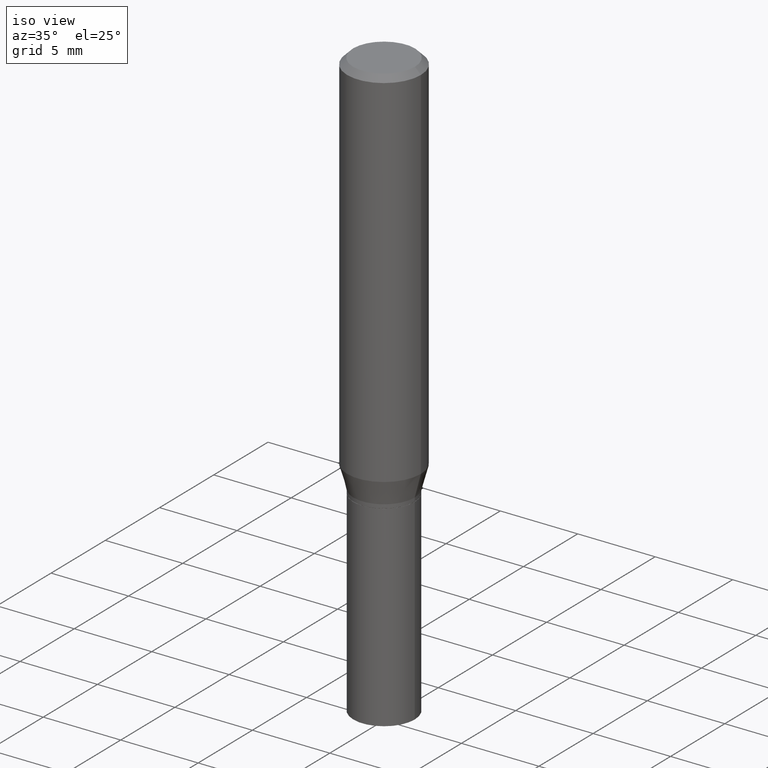
[diagram: clean part render]
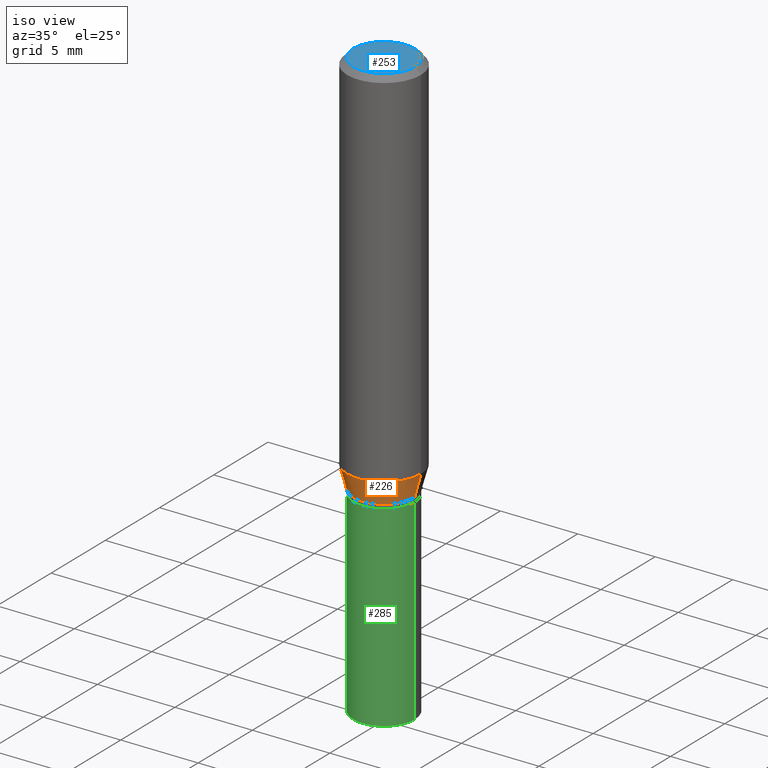
[diagram: same view with three faces highlighted in distinct colors, each labeled with its STEP entity id]
A machine part, iso view with three faces highlighted in distinct colors.
Their STEP definitions:

[orange] entity #226 — the highlighted conical surface has half-angle 15 deg.
#10 = EDGE_CURVE ( 'NONE', #308, #464, #155, .T. ) ;
#22 = VECTOR ( 'NONE', #347, 39.37007874015748143 ) ;
#43 = CIRCLE ( 'NONE', #256, 0.07810000000000004439 ) ;
#51 = FACE_OUTER_BOUND ( 'NONE', #87, .T. ) ;
#57 = CARTESIAN_POINT ( 'NONE',  ( 2.278182611636715174E-29, -3.252640988463440710E-15, -0.9315934048615475138 ) ) ;
#78 = CARTESIAN_POINT ( 'NONE',  ( 2.421014118123285332E-29, -3.456566525454714328E-15, -0.9900000000000001021 ) ) ;
#87 = EDGE_LOOP ( 'NONE', ( #255, #460, #358, #465 ) ) ;
#105 = EDGE_CURVE ( 'NONE', #231, #308, #43, .T. ) ;
#110 = DIRECTION ( 'NONE',  ( 1.000000000000000000, -6.982962677686266711E-15, 0.000000000000000000 ) ) ;
#124 = CARTESIAN_POINT ( 'NONE',  ( 2.421014118123285332E-29, -3.456566525454714328E-15, -0.9900000000000001021 ) ) ;
#126 = LINE ( 'NONE', #279, #22 ) ;
#154 = VERTEX_POINT ( 'NONE', #316 ) ;
#155 = LINE ( 'NONE', #194, #466 ) ;
#189 = EDGE_CURVE ( 'NONE', #231, #154, #126, .T. ) ;
#194 = CARTESIAN_POINT ( 'NONE',  ( 0.07810000000000004439, -4.001935910582012553E-15, -0.9900000000000001021 ) ) ;
#201 = AXIS2_PLACEMENT_3D ( 'NONE', #57, #216, #110 ) ;
#207 = CARTESIAN_POINT ( 'NONE',  ( -0.07810000000000004439, -2.744069911257211227E-15, -0.9900000000000001021 ) ) ;
#215 = DIRECTION ( 'NONE',  ( -2.445468806185136597E-29, 3.491481338843145583E-15, 1.000000000000000000 ) ) ;
#216 = DIRECTION ( 'NONE',  ( -2.445468806185136597E-29, 3.491481338843145583E-15, 1.000000000000000000 ) ) ;
#224 = CARTESIAN_POINT ( 'NONE',  ( 0.09375000000000001388, -3.907293739496527425E-15, -0.9315934048615475138 ) ) ;
#226 = ADVANCED_FACE ( 'NONE', ( #51 ), #367, .T. ) ;
#231 = VERTEX_POINT ( 'NONE', #207 ) ;
#255 = ORIENTED_EDGE ( 'NONE', *, *, #189, .F. ) ;
#256 = AXIS2_PLACEMENT_3D ( 'NONE', #78, #215, #318 ) ;
#273 = CIRCLE ( 'NONE', #201, 0.09375000000000001388 ) ;
#279 = CARTESIAN_POINT ( 'NONE',  ( -0.07810000000000004439, -2.901632648826075669E-15, -0.9900000000000001021 ) ) ;
#308 = VERTEX_POINT ( 'NONE', #459 ) ;
#309 = DIRECTION ( 'NONE',  ( -2.445468806185136597E-29, 3.491481338843145583E-15, 1.000000000000000000 ) ) ;
#316 = CARTESIAN_POINT ( 'NONE',  ( -0.09375000000000001388, -2.586507173688346391E-15, -0.9315934048615475138 ) ) ;
#318 = DIRECTION ( 'NONE',  ( 1.000000000000000000, -6.982962677686269077E-15, 0.000000000000000000 ) ) ;
#338 = DIRECTION ( 'NONE',  ( 0.2588190451025214611, 1.565188264969620982E-15, 0.9659258262890679791 ) ) ;
#347 = DIRECTION ( 'NONE',  ( -0.2588190451025214611, 5.211531920934550253E-15, 0.9659258262890679791 ) ) ;
#352 = DIRECTION ( 'NONE',  ( 1.000000000000000000, -6.982962677686269077E-15, 0.000000000000000000 ) ) ;
#358 = ORIENTED_EDGE ( 'NONE', *, *, #10, .T. ) ;
#366 = EDGE_CURVE ( 'NONE', #154, #464, #273, .T. ) ;
#367 = CONICAL_SURFACE ( 'NONE', #446, 0.07810000000000004439, 0.2617993877991501850 ) ;
#446 = AXIS2_PLACEMENT_3D ( 'NONE', #124, #309, #352 ) ;
#459 = CARTESIAN_POINT ( 'NONE',  ( 0.07810000000000004439, -4.001935910582012553E-15, -0.9900000000000001021 ) ) ;
#460 = ORIENTED_EDGE ( 'NONE', *, *, #105, .T. ) ;
#464 = VERTEX_POINT ( 'NONE', #224 ) ;
#465 = ORIENTED_EDGE ( 'NONE', *, *, #366, .F. ) ;
#466 = VECTOR ( 'NONE', #338, 39.37007874015748143 ) ;

[blue] entity #253 — the highlighted planar face has unit normal (0, -0, -1).
#2 = DIRECTION ( 'NONE',  ( 1.000000000000000000, -6.982962677686267499E-15, 4.876807983162778740E-29 ) ) ;
#4 = ORIENTED_EDGE ( 'NONE', *, *, #166, .T. ) ;
#33 = CIRCLE ( 'NONE', #128, 0.07875000000000001443 ) ;
#42 = DIRECTION ( 'NONE',  ( 1.000000000000000000, -6.982962677686267499E-15, 4.876807983162778740E-29 ) ) ;
#44 = EDGE_CURVE ( 'NONE', #433, #239, #33, .T. ) ;
#45 = ORIENTED_EDGE ( 'NONE', *, *, #44, .T. ) ;
#47 = CARTESIAN_POINT ( 'NONE',  ( -0.07875000000000001443, 5.760944209091169839E-16, 1.724453912998643423E-17 ) ) ;
#67 = AXIS2_PLACEMENT_3D ( 'NONE', #131, #441, #423 ) ;
#92 = DIRECTION ( 'NONE',  ( -2.445468806185136597E-29, 3.491481338843145583E-15, 1.000000000000000000 ) ) ;
#101 = CARTESIAN_POINT ( 'NONE',  ( 0.07875000000000001443, -6.179040623491182236E-16, 1.724453912999445534E-17 ) ) ;
#113 = EDGE_LOOP ( 'NONE', ( #4, #45 ) ) ;
#128 = AXIS2_PLACEMENT_3D ( 'NONE', #405, #336, #2 ) ;
#131 = CARTESIAN_POINT ( 'NONE',  ( 5.499083108677934443E-16, 0.07875000000000001443, -2.663318858689025652E-16 ) ) ;
#166 = EDGE_CURVE ( 'NONE', #239, #433, #295, .T. ) ;
#173 = FACE_OUTER_BOUND ( 'NONE', #113, .T. ) ;
#239 = VERTEX_POINT ( 'NONE', #47 ) ;
#243 = CARTESIAN_POINT ( 'NONE',  ( -4.217098251943042903E-46, 6.020898656931179793E-32, 1.724453912999037237E-17 ) ) ;
#253 = ADVANCED_FACE ( 'NONE', ( #173 ), #447, .F. ) ;
#295 = CIRCLE ( 'NONE', #302, 0.07875000000000001443 ) ;
#302 = AXIS2_PLACEMENT_3D ( 'NONE', #243, #92, #42 ) ;
#336 = DIRECTION ( 'NONE',  ( -2.445468806185136597E-29, 3.491481338843145583E-15, 1.000000000000000000 ) ) ;
#405 = CARTESIAN_POINT ( 'NONE',  ( -4.217098251943042903E-46, 6.020898656931179793E-32, 1.724453912999037237E-17 ) ) ;
#423 = DIRECTION ( 'NONE',  ( -1.000000000000000000, 6.982962677686265922E-15, -4.876176775795935793E-29 ) ) ;
#433 = VERTEX_POINT ( 'NONE', #101 ) ;
#441 = DIRECTION ( 'NONE',  ( 2.438088387897960049E-29, -3.491481338843145188E-15, -1.000000000000000000 ) ) ;
#447 = PLANE ( 'NONE',  #67 ) ;

[green] entity #285 — the highlighted cylindrical surface (partial cylindrical patch) has radius 1.9837 mm, axis along (-0, 0, 1).
#1 = DIRECTION ( 'NONE',  ( 1.000000000000000000, -6.982962677686266711E-15, 0.000000000000000000 ) ) ;
#6 = ORIENTED_EDGE ( 'NONE', *, *, #17, .F. ) ;
#9 = CARTESIAN_POINT ( 'NONE',  ( 3.668203209277704895E-29, -5.237222008264718177E-15, -1.500000000000000222 ) ) ;
#17 = EDGE_CURVE ( 'NONE', #217, #190, #434, .T. ) ;
#20 = EDGE_CURVE ( 'NONE', #136, #407, #265, .T. ) ;
#38 = ORIENTED_EDGE ( 'NONE', *, *, #20, .T. ) ;
#64 = CYLINDRICAL_SURFACE ( 'NONE', #210, 0.07810000000000000275 ) ;
#77 = EDGE_LOOP ( 'NONE', ( #161, #38, #387, #6 ) ) ;
#107 = LINE ( 'NONE', #329, #114 ) ;
#114 = VECTOR ( 'NONE', #328, 39.37007874015748143 ) ;
#136 = VERTEX_POINT ( 'NONE', #391 ) ;
#151 = EDGE_CURVE ( 'NONE', #136, #217, #206, .T. ) ;
#161 = ORIENTED_EDGE ( 'NONE', *, *, #151, .F. ) ;
#183 = DIRECTION ( 'NONE',  ( 1.000000000000000000, -6.982962677686266711E-15, 4.876176775795935232E-29 ) ) ;
#190 = VERTEX_POINT ( 'NONE', #414 ) ;
#203 = CARTESIAN_POINT ( 'NONE',  ( 2.445468806185136877E-29, -3.491481338843145977E-15, -1.000000000000000222 ) ) ;
#206 = LINE ( 'NONE', #286, #323 ) ;
#210 = AXIS2_PLACEMENT_3D ( 'NONE', #292, #259, #183 ) ;
#217 = VERTEX_POINT ( 'NONE', #384 ) ;
#259 = DIRECTION ( 'NONE',  ( -2.445468806185136597E-29, 3.491481338843145583E-15, 1.000000000000000000 ) ) ;
#265 = CIRCLE ( 'NONE', #268, 0.07810000000000000275 ) ;
#268 = AXIS2_PLACEMENT_3D ( 'NONE', #9, #438, #342 ) ;
#285 = ADVANCED_FACE ( 'NONE', ( #297 ), #64, .T. ) ;
#286 = CARTESIAN_POINT ( 'NONE',  ( -0.07810000000000000275, 5.549338766286382647E-16, -3.841688305489081275E-30 ) ) ;
#292 = CARTESIAN_POINT ( 'NONE',  ( 0.000000000000000000, 0.000000000000000000, 0.000000000000000000 ) ) ;
#297 = FACE_OUTER_BOUND ( 'NONE', #77, .T. ) ;
#323 = VECTOR ( 'NONE', #444, 39.37007874015748143 ) ;
#328 = DIRECTION ( 'NONE',  ( -2.445468806185136877E-29, 3.491481338843145188E-15, 1.000000000000000000 ) ) ;
#329 = CARTESIAN_POINT ( 'NONE',  ( 0.07810000000000000275, -5.453693851272974364E-16, 3.808294061896625703E-30 ) ) ;
#337 = EDGE_CURVE ( 'NONE', #407, #190, #107, .T. ) ;
#342 = DIRECTION ( 'NONE',  ( 1.000000000000000000, -6.982962677686266711E-15, 0.000000000000000000 ) ) ;
#345 = DIRECTION ( 'NONE',  ( -2.445468806185136597E-29, 3.491481338843145583E-15, 1.000000000000000000 ) ) ;
#384 = CARTESIAN_POINT ( 'NONE',  ( -0.07810000000000000275, -3.809417796925293812E-15, -1.000000000000000222 ) ) ;
#387 = ORIENTED_EDGE ( 'NONE', *, *, #337, .T. ) ;
#391 = CARTESIAN_POINT ( 'NONE',  ( -0.07810000000000000275, -3.809417796925293812E-15, -1.500000000000000222 ) ) ;
#403 = AXIS2_PLACEMENT_3D ( 'NONE', #203, #345, #1 ) ;
#407 = VERTEX_POINT ( 'NONE', #461 ) ;
#414 = CARTESIAN_POINT ( 'NONE',  ( 0.07810000000000000275, -4.036850723970443413E-15, -1.000000000000000222 ) ) ;
#434 = CIRCLE ( 'NONE', #403, 0.07810000000000000275 ) ;
#438 = DIRECTION ( 'NONE',  ( -2.445468806185136597E-29, 3.491481338843145583E-15, 1.000000000000000000 ) ) ;
#444 = DIRECTION ( 'NONE',  ( -2.445468806185136877E-29, 3.491481338843145188E-15, 1.000000000000000000 ) ) ;
#461 = CARTESIAN_POINT ( 'NONE',  ( 0.07810000000000000275, -5.782591393392015613E-15, -1.500000000000000222 ) ) ;